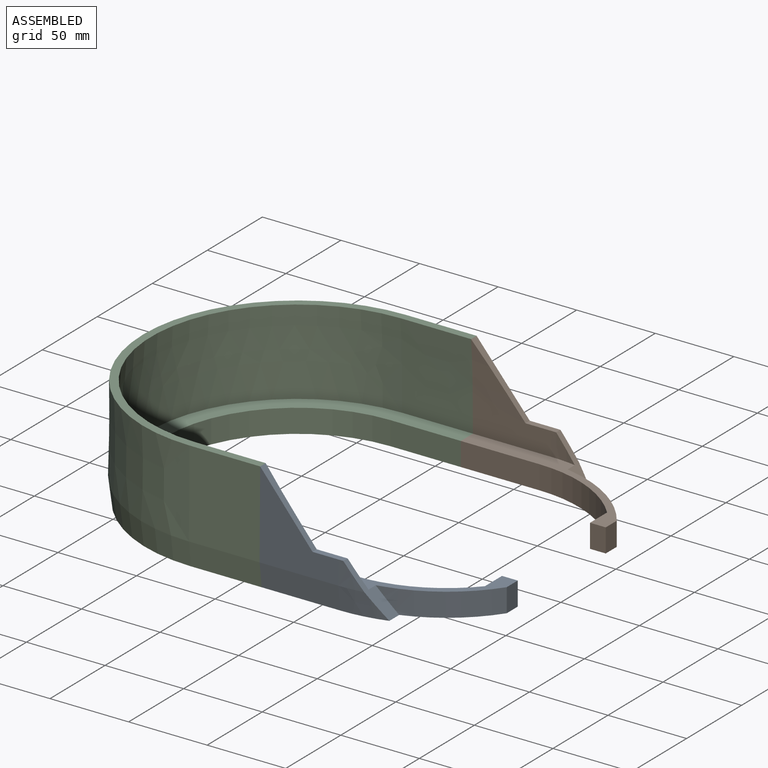
[diagram: assembled view]
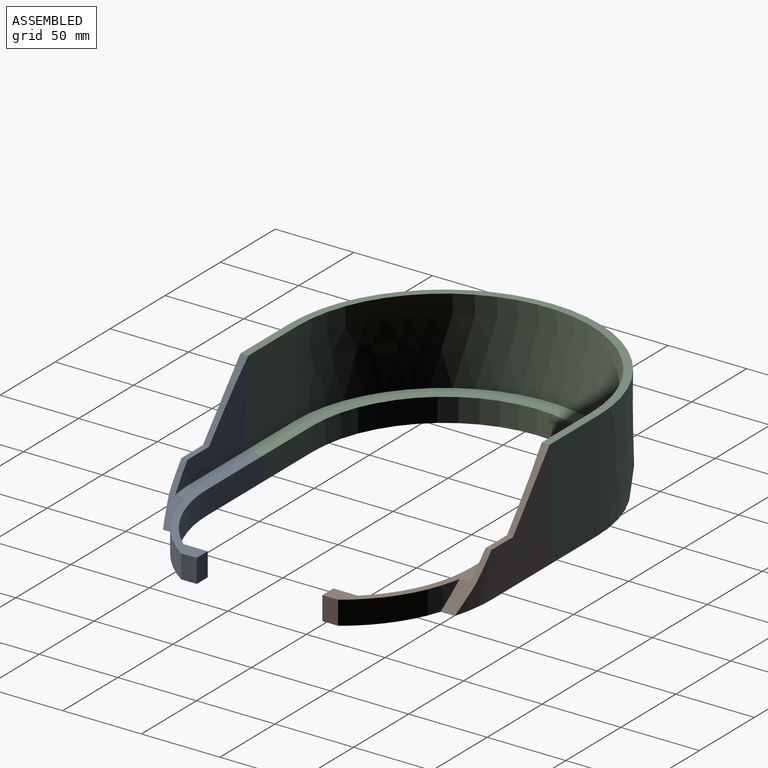
[diagram: assembled view, second angle]
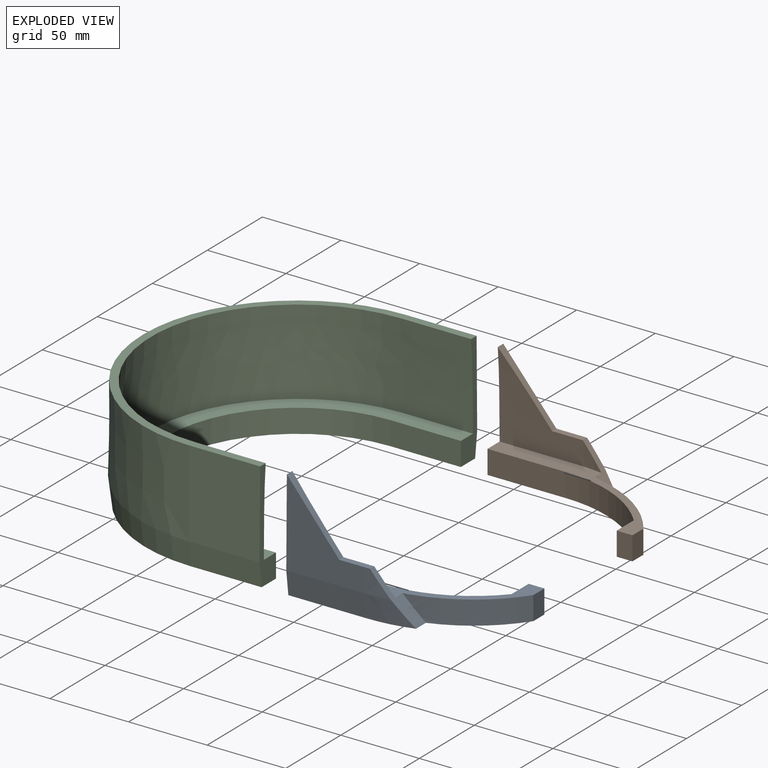
[diagram: exploded view]
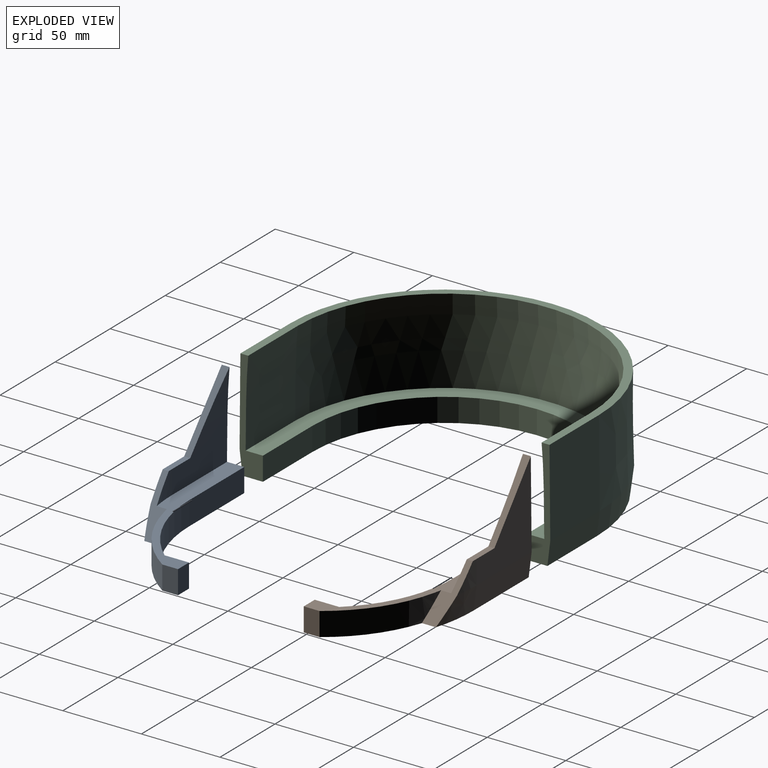
[diagram: exploded view, second angle]
ASSEMBLY  parts=3 mates=2
PART A: 19 faces, bbox 123.1x58.9x70.1 mm
  f0: plane 55x50mm, normal (0,-1,0.01), area 1421.3mm2, adj f1,f2,f3,f5,f7
  f1: plane 40x33.56mm, normal (0.77,0,0.64), area 216.7mm2, adj f0,f2,f7,f8
  f2: plane 19.58x3.9mm, normal (0,0,1), area 75.4mm2, adj f0,f1,f3,f8,f9,f10
  f3: cone r=98.34mm half-angle=0.5deg, axis (0,0,-1), area 142mm2, adj f0,f2,f4,f10
  f4: cone r=98.86mm half-angle=7.1deg, axis (0,0,1), area 335.9mm2, adj f3,f5,f10,f14
  f5: plane 50x15mm, normal (0,-0.99,-0.12), area 755.6mm2, adj f0,f4,f7,f14
  f6: plane 50x15mm, normal (0,1,0), area 749.8mm2, adj f7,f12,f14,f15
  f7: plane 70x14.86mm, normal (-1,0,0), area 432.7mm2, adj f0,f1,f5,f6,f8,f12,f14
  f8: extruded ~55x50mm, area 1421.6mm2, adj f1,f2,f7,f9,f12
  f9: revolved ~15.73x15mm, area 142.4mm2, adj f2,f8,f10,f12
  f10: plane 30.09x25.26mm, normal (0.77,0,0.64), area 265.7mm2, adj f2,f3,f4,f9,f11,f12,f13,f14
  f11: plane 5.36x4.5mm, normal (0.23,-0.97,0), area 12.4mm2, adj f10,f12,f13
  f12: plane 123.02x55mm, normal (0,0,1), area 1135.3mm2, adj f6,f7,f8,f9,f10,f11,f13,f15
  f13: cylinder r=88.5mm len=52.79mm, axis (0,0,1), area 941.3mm2, adj f10,f11,f12,f14,f18
  f14: plane 123.02x57mm, normal (0,0,-1), area 1377mm2, adj f4,f5,f6,f7,f10,f13,f15,f16
  f15: cylinder r=84mm len=63.02mm, axis (0,0,1), area 1068.8mm2, adj f6,f12,f14,f16
  f16: plane 15.54x15mm, normal (-1,0,0), area 233mm2, adj f12,f14,f15,f17
  f17: plane 15x10mm, normal (0,1,0), area 150mm2, adj f12,f14,f16,f18
  f18: plane 15x10mm, normal (1,0,0), area 150mm2, adj f12,f13,f14,f17
PART B: 19 faces, bbox 123.1x58.9x70.1 mm
  f0: plane 55x50mm, normal (0,1,0.01), area 1421.3mm2, adj f1,f2,f3,f5,f7
  f1: plane 40x33.56mm, normal (0.77,0,0.64), area 216.7mm2, adj f0,f2,f7,f8
  f2: plane 19.58x3.9mm, normal (0,0,1), area 75.4mm2, adj f0,f1,f3,f8,f9,f10
  f3: cone r=98.34mm half-angle=0.5deg, axis (0,0,-1), area 142mm2, adj f0,f2,f4,f10
  f4: cone r=98.86mm half-angle=7.1deg, axis (0,0,1), area 335.9mm2, adj f3,f5,f10,f14
  f5: plane 50x15mm, normal (0,0.99,-0.12), area 755.6mm2, adj f0,f4,f7,f14
  f6: plane 50x15mm, normal (0,-1,0), area 749.8mm2, adj f7,f12,f14,f15
  f7: plane 70x14.86mm, normal (-1,0,0), area 432.7mm2, adj f0,f1,f5,f6,f8,f12,f14
  f8: extruded ~55x50mm, area 1421.6mm2, adj f1,f2,f7,f9,f12
  f9: revolved ~15.73x15mm, area 142.4mm2, adj f2,f8,f10,f12
  f10: plane 30.09x25.26mm, normal (0.77,0,0.64), area 265.7mm2, adj f2,f3,f4,f9,f11,f12,f13,f14
  f11: plane 5.36x4.5mm, normal (0.23,0.97,0), area 12.4mm2, adj f10,f12,f13
  f12: plane 123.02x55mm, normal (0,0,1), area 1135.3mm2, adj f6,f7,f8,f9,f10,f11,f13,f15
  f13: cylinder r=88.5mm len=52.79mm, axis (0,0,1), area 941.3mm2, adj f10,f11,f12,f14,f18
  f14: plane 123.02x57mm, normal (0,0,-1), area 1377mm2, adj f4,f5,f6,f7,f10,f13,f15,f16
  f15: cylinder r=84mm len=63.02mm, axis (0,0,1), area 1068.8mm2, adj f6,f12,f14,f16
  f16: plane 15.54x15mm, normal (-1,0,0), area 233mm2, adj f12,f14,f15,f17
  f17: plane 15x10mm, normal (0,-1,0), area 150mm2, adj f12,f14,f16,f18
  f18: plane 15x10mm, normal (1,0,0), area 150mm2, adj f12,f13,f14,f17
PART C: 19 faces, bbox 143.9x197.7x70 mm
  f0: cone r=98.34mm half-angle=0.5deg, axis (0,0,-1), area 17037.2mm2, adj f1,f6,f10,f13
  f1: plane 196.67x143.34mm, normal (0,0,1), area 1955.4mm2, adj f0,f2,f9,f10,f11,f13,f14,f16
  f2: revolved ~190x95mm, area 16345.6mm2, adj f1,f3,f9,f14
  f3: plane 190x140mm, normal (0,0,1), area 4082.9mm2, adj f2,f4,f8,f9,f11,f14,f15,f16
  f4: cylinder r=84mm len=168mm, axis (0,0,1), area 3957.6mm2, adj f3,f5,f8,f15
  f5: plane 194x142mm, normal (0,0,-1), area 4862.9mm2, adj f4,f6,f7,f8,f11,f12,f15,f16
  f6: cone r=98.86mm half-angle=7.1deg, axis (0,0,1), area 4649.1mm2, adj f0,f5,f7,f12
  f7: plane 45x15mm, normal (0,-0.99,-0.12), area 680mm2, adj f5,f6,f10,f11
  f8: plane 45x15mm, normal (0,1,0), area 674.9mm2, adj f3,f4,f5,f11
  f9: extruded ~55x45mm, area 2476.9mm2, adj f1,f2,f3,f11
  f10: plane 55x45mm, normal (0,-1,0.01), area 2475.1mm2, adj f0,f1,f7,f11
  f11: plane 70x14.86mm, normal (1,0,0), area 432.7mm2, adj f1,f3,f5,f7,f8,f9,f10
  f12: plane 45x15mm, normal (0,0.99,-0.12), area 680mm2, adj f5,f6,f13,f16
  f13: plane 55x45mm, normal (0,1,0.01), area 2475.1mm2, adj f0,f1,f12,f16
  f14: extruded ~55x45mm, area 2476.9mm2, adj f1,f2,f3,f16
  f15: plane 45x15mm, normal (0,-1,0), area 674.9mm2, adj f3,f4,f5,f16
  f16: plane 70x14.86mm, normal (1,0,0), area 432.7mm2, adj f1,f3,f5,f12,f13,f14,f15
  f17: cylinder r=1mm len=3mm, axis (0,0,-1), area 18.8mm2, adj f5,f18
  f18: plane 2x2mm, normal (0,0,-1), area 3.1mm2, adj f17
PLACE A t=(217.89,111.3,150.64)mm
PLACE B t=(217.89,16.3,150.64)mm
PLACE C t=(122.89,16.3,150.64)mm
MATE fastened C.f11 <-> A.f7  axis (1,0,0) through (167.89,-33.2,65.64)mm
MATE fastened B.f7 <-> C.f16  axis (-1,0,0) through (167.89,160.8,65.64)mm
